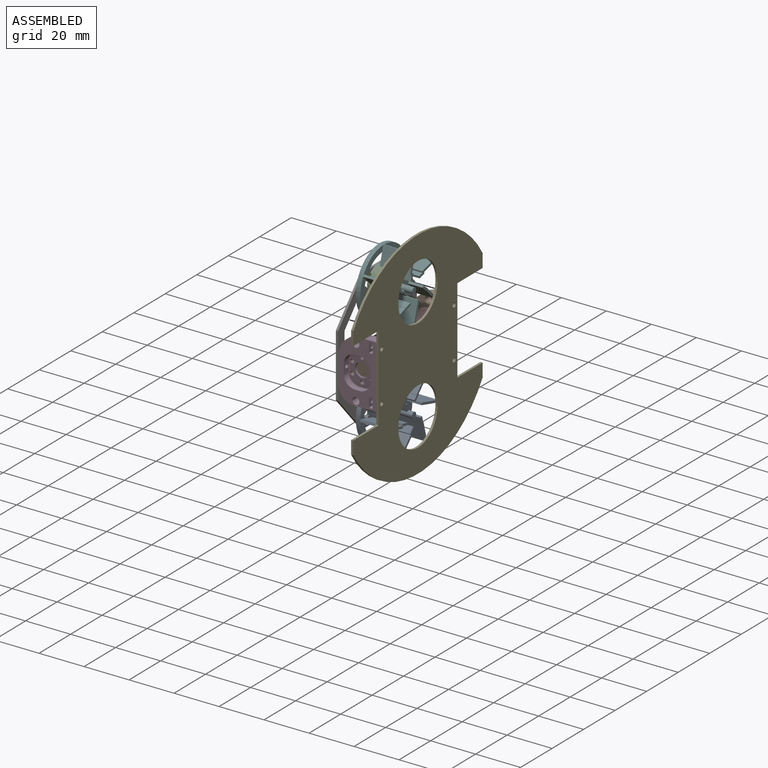
[diagram: assembled view]
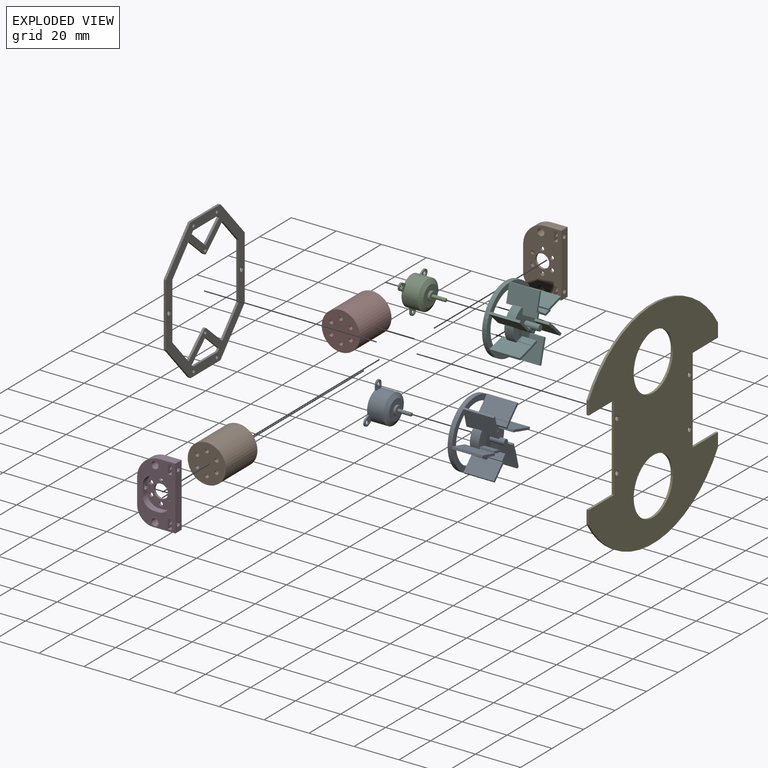
[diagram: exploded view]
GUIDED TOUR — MATED ASSEMBLY (Onshape document d8c64805f98a9f6dff895dfa, AutoMate assembly d8c64805f98a9f6dff895dfa_752a2c7e5c86d615102a377a_ef222d4d5db80c55affcdec6_default)

This assembly has 10 components, labeled P0..P9 below (a component is one placed occurrence of a part; the same part can appear more than once), held together by 9 mates. A mate is a constraint between two components; its type names the relative motion it leaves free:
  FASTENED — locks the two components together rigidly (no relative motion).
Axis/direction vectors are unit vectors and 'through' points are millimeter coordinates, both in the assembly's world frame.

MATES
  1. FASTENED "Fastened 5": P2 <-> P5, direction (1.000, 0.000, 0.000) through (3.87, 2.54, 43.25) mm
  2. FASTENED "Fastened 4": P7 <-> P1, direction (0.000, 1.000, 0.000) through (1.45, 23.54, 20.25) mm
  3. FASTENED "Fastened 2": P3 <-> P4, direction (1.000, 0.000, 0.000) through (5.62, -20.46, 7.24) mm
  4. FASTENED "Fastened 7": P0 <-> P6, direction (1.000, 0.000, 0.000) through (-11.38, 2.54, 1.75) mm
  5. FASTENED "Fastened 9": P6 <-> P1, direction (1.000, 0.000, 0.000) through (-11.38, 25.54, 18.25) mm
  6. FASTENED "Fastened 6": P0 <-> P8, direction (1.000, 0.000, 0.000) through (3.87, 2.54, -6.75) mm
  7. FASTENED "Fastened 3": P9 <-> P3, direction (0.000, -1.000, 0.000) through (1.45, -18.46, 15.25) mm
  8. FASTENED "Fastened 1": P1 <-> P4, direction (1.000, 0.000, 0.000) through (5.62, 25.54, 7.24) mm
  9. FASTENED "Fastened 8": P2 <-> P6, direction (1.000, 0.000, 0.000) through (-11.38, 2.54, 34.75) mm

ASSEMBLY ORDER
  1. P0 — the base component [order heuristic]
  2. P2 — core [order heuristic]
  3. P5 — core [order heuristic]
  4. P8 — core [order heuristic]
  5. P9 [order verified]
  6. P3 [order verified]
  7. P7 [order verified]
  8. P1 [order verified]
  9. P6 [order verified]
  10. P4 [order verified]
Order-tag legend:
  [order verified] — this step's position reverses a verified removal order: the component was checked to insert without passing through the ones already placed.
  [order heuristic] — the first 4 components form the assembly's core: parts whose collision-free extraction could not be verified, listed in mate-graph order.

Of the 10 components, 3 carry the full construction recipe — the FeatureScript program that regenerates the part's solid from scratch; the rest are supplied as boundary geometry only.
Each toured component is shown spotlighted twice — in the assembled view, then in the exploded view, where a leader line traces a displaced component back to its assembled socket (saturated green if recipe-attached, orange if geometry-only; every other component desaturated gray) — followed by its recipe or geometry summary and the mates that hold it.
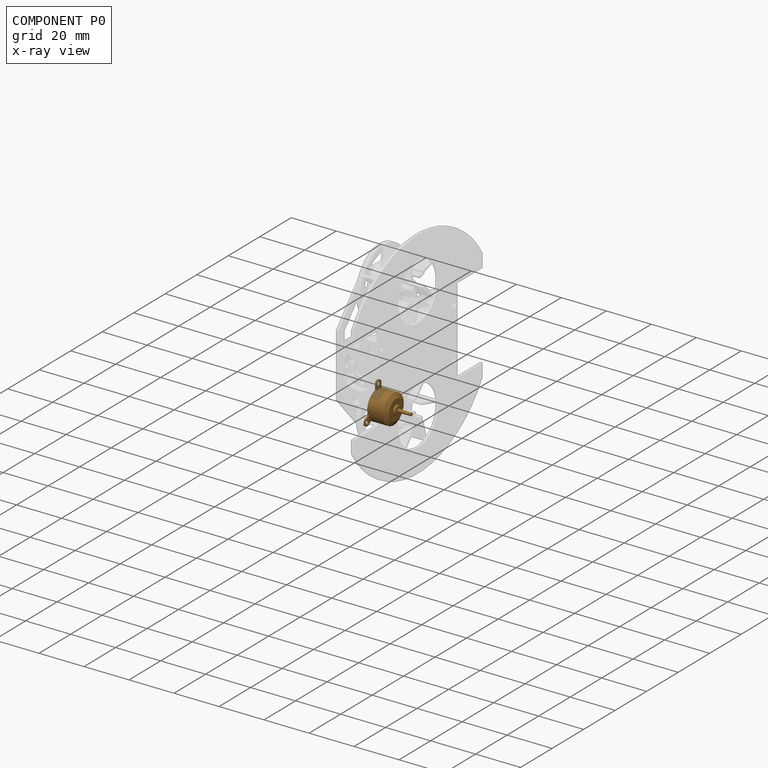
[diagram: component P0 — x-ray view]
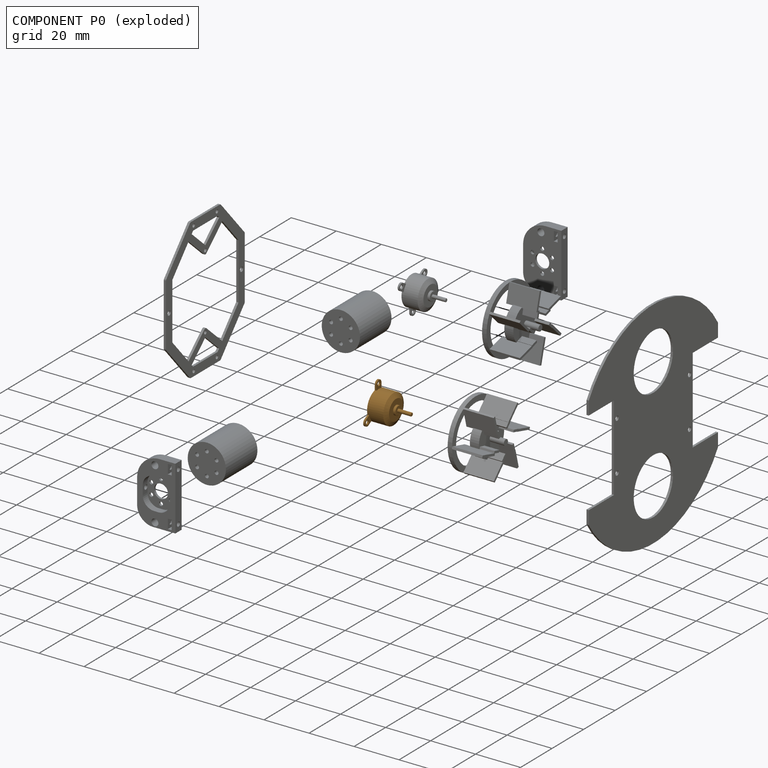
[diagram: component P0 — exploded]
COMPONENT P0 — geometry summary (no construction recipe available for this part):
  bounding box: 18.0 x 16.6 x 15.4 mm
  B-rep topology: 1 solid, 31 faces, 184 edges
  volume: 1108 mm^3 (24% of its bounding box)
  symmetry: mirror-symmetric across its z mid-plane
Held by: FASTENED mate "Fastened 7" to P6; FASTENED mate "Fastened 6" to P8.
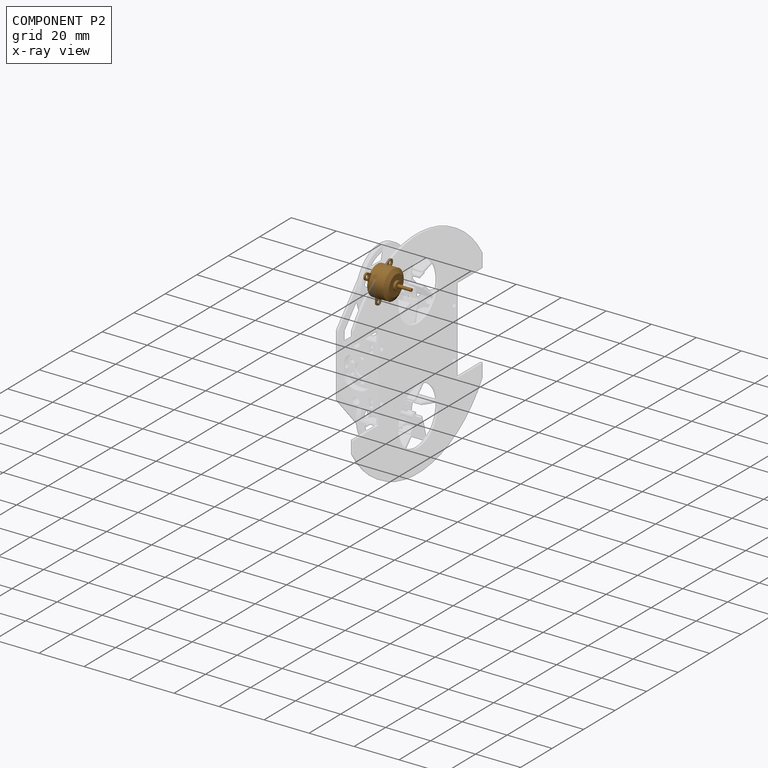
[diagram: component P2 — x-ray view]
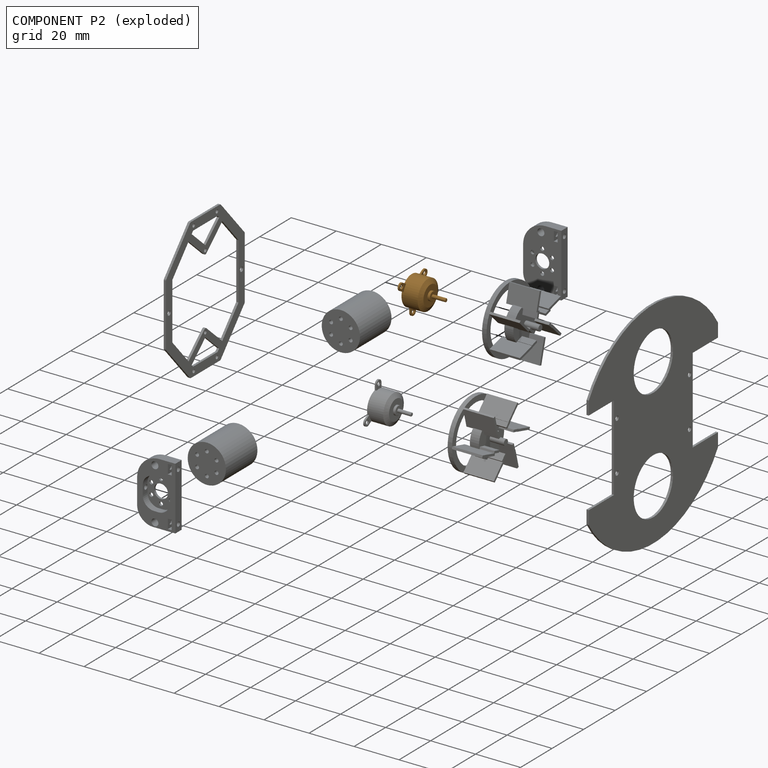
[diagram: component P2 — exploded]
COMPONENT P2 — geometry summary (no construction recipe available for this part):
  bounding box: 18.0 x 16.6 x 15.4 mm
  B-rep topology: 1 solid, 31 faces, 184 edges
  volume: 1108 mm^3 (24% of its bounding box)
  symmetry: mirror-symmetric across its z mid-plane
Held by: FASTENED mate "Fastened 5" to P5; FASTENED mate "Fastened 8" to P6.
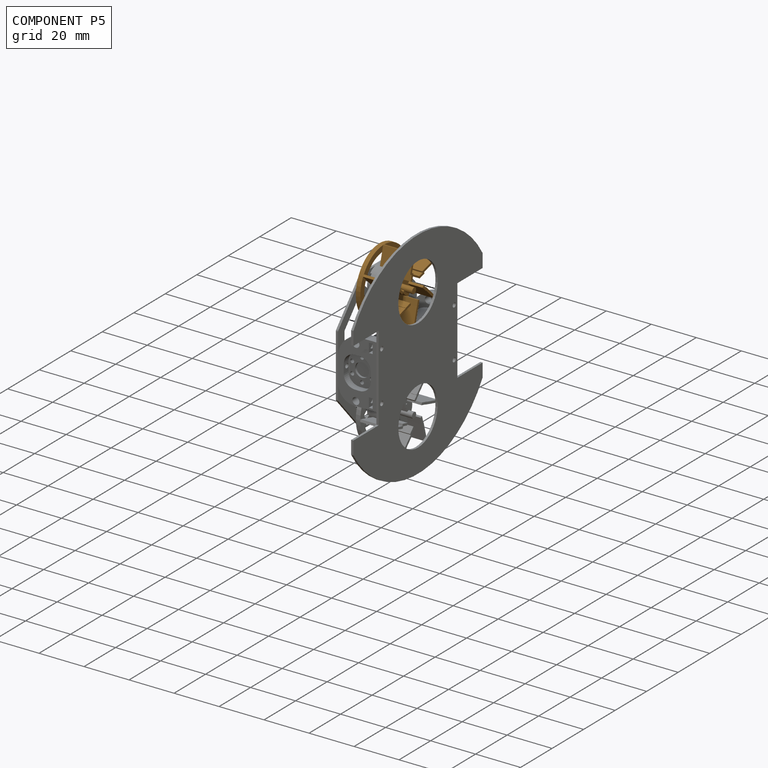
[diagram: component P5 — assembled]
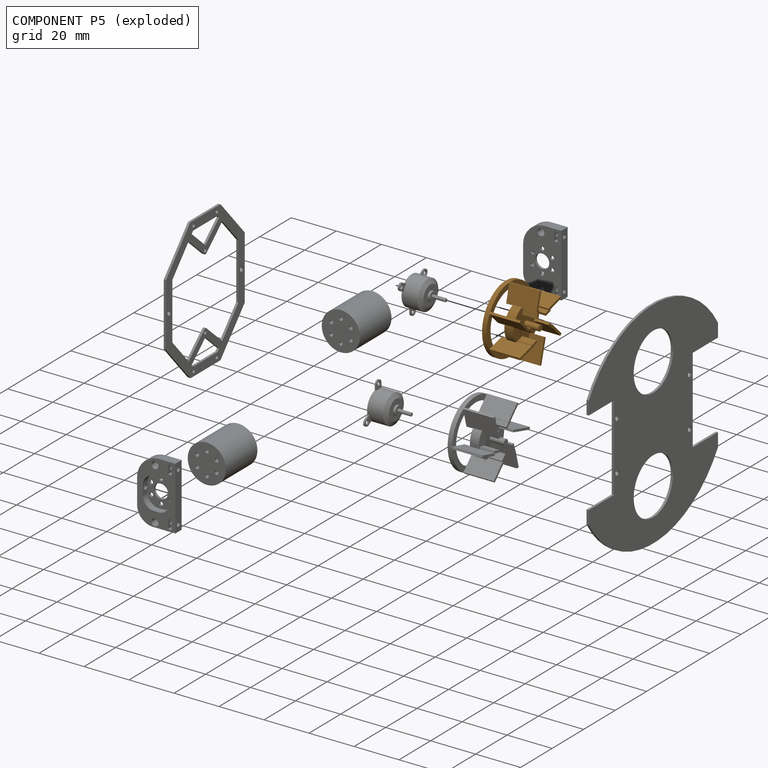
[diagram: component P5 — exploded]
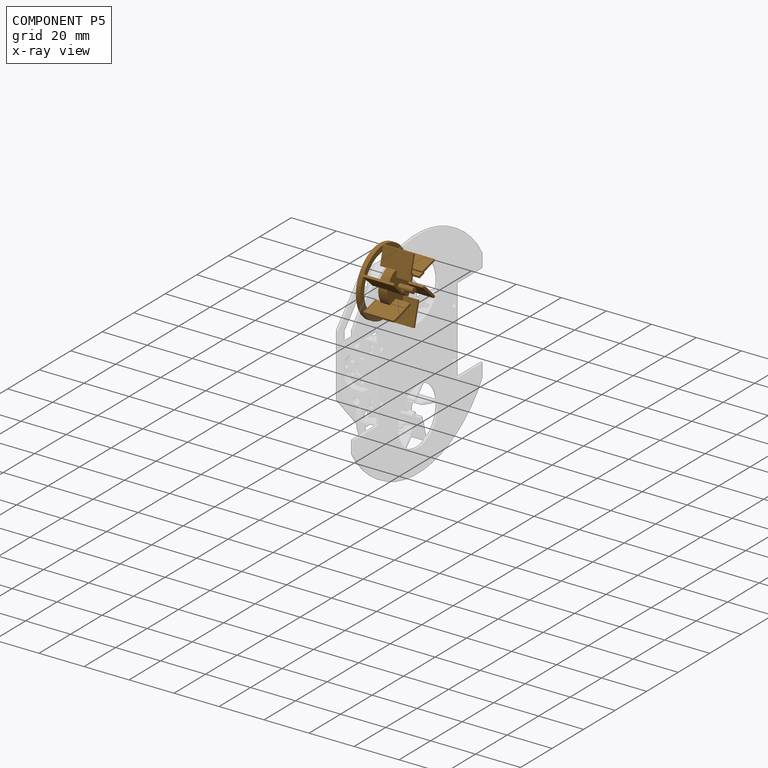
[diagram: component P5 — x-ray view]
COMPONENT P5 — geometry summary (no construction recipe available for this part):
  bounding box: 30.3 x 30.0 x 15.5 mm
  B-rep topology: 1 solid, 100 faces, 574 edges
  volume: 1623 mm^3 (12% of its bounding box)
Held by: FASTENED mate "Fastened 5" to P2.
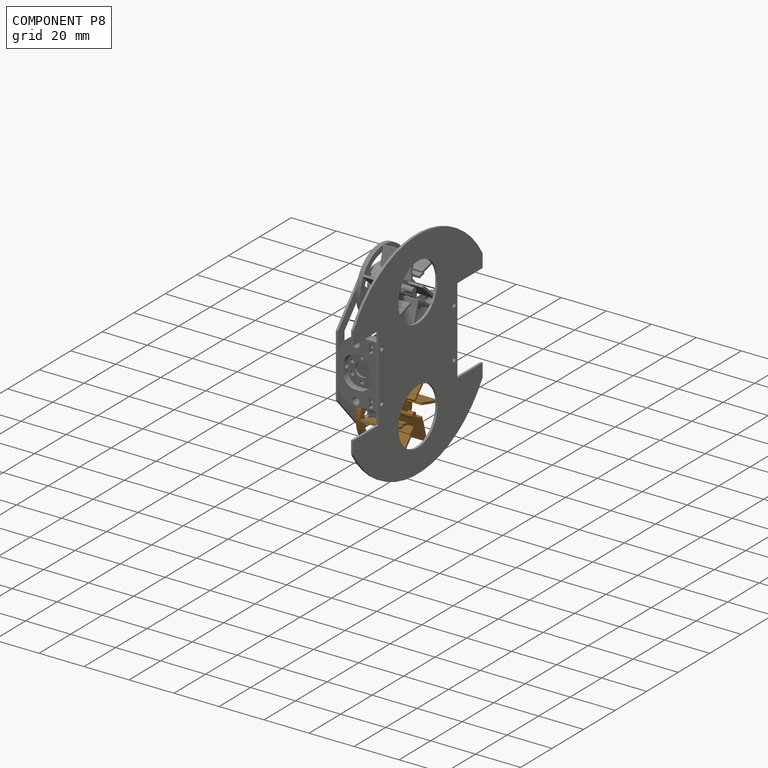
[diagram: component P8 — assembled]
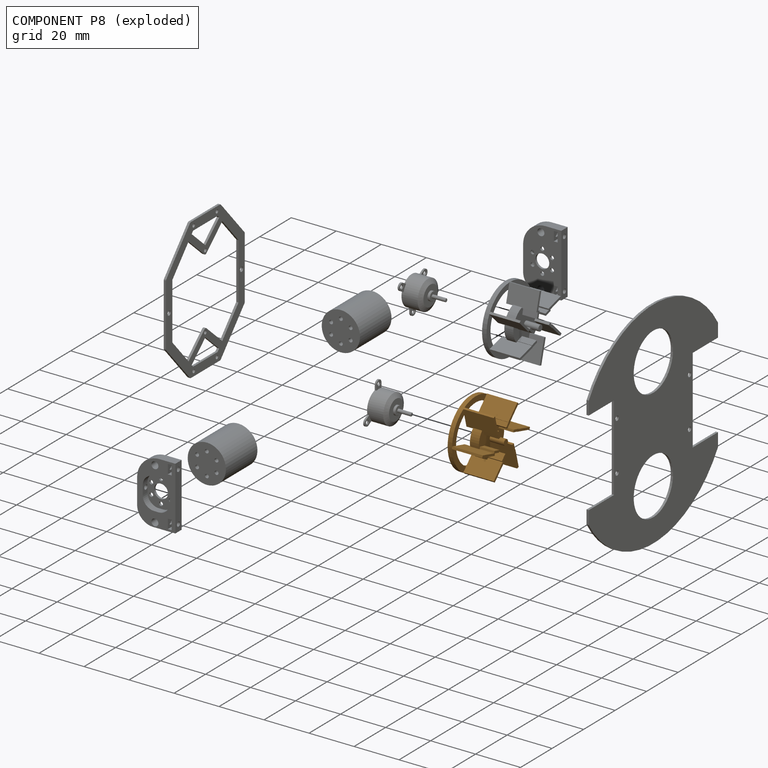
[diagram: component P8 — exploded]
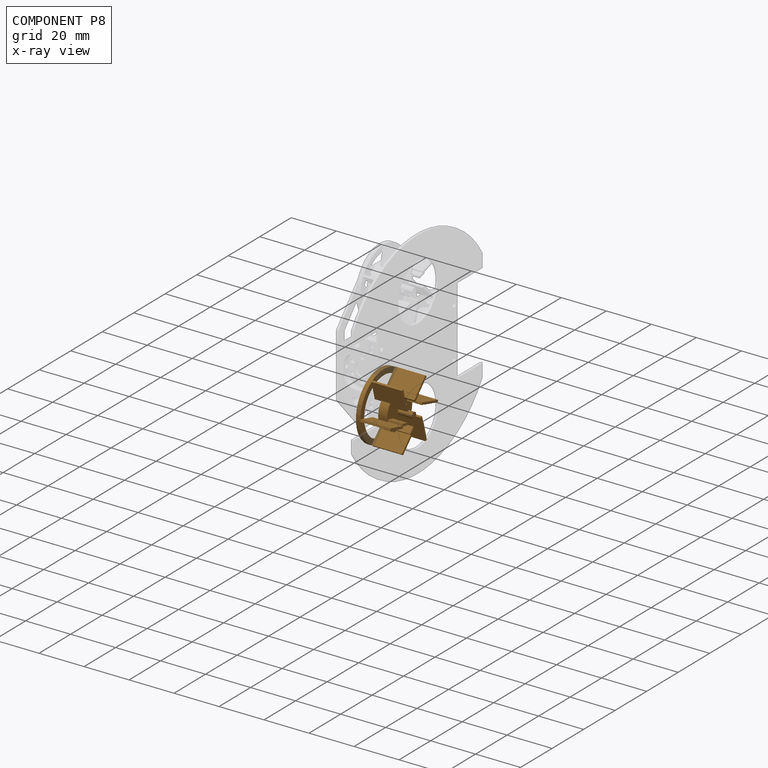
[diagram: component P8 — x-ray view]
COMPONENT P8 — geometry summary (no construction recipe available for this part):
  bounding box: 30.3 x 30.0 x 15.5 mm
  B-rep topology: 1 solid, 100 faces, 574 edges
  volume: 1623 mm^3 (12% of its bounding box)
Held by: FASTENED mate "Fastened 6" to P0.
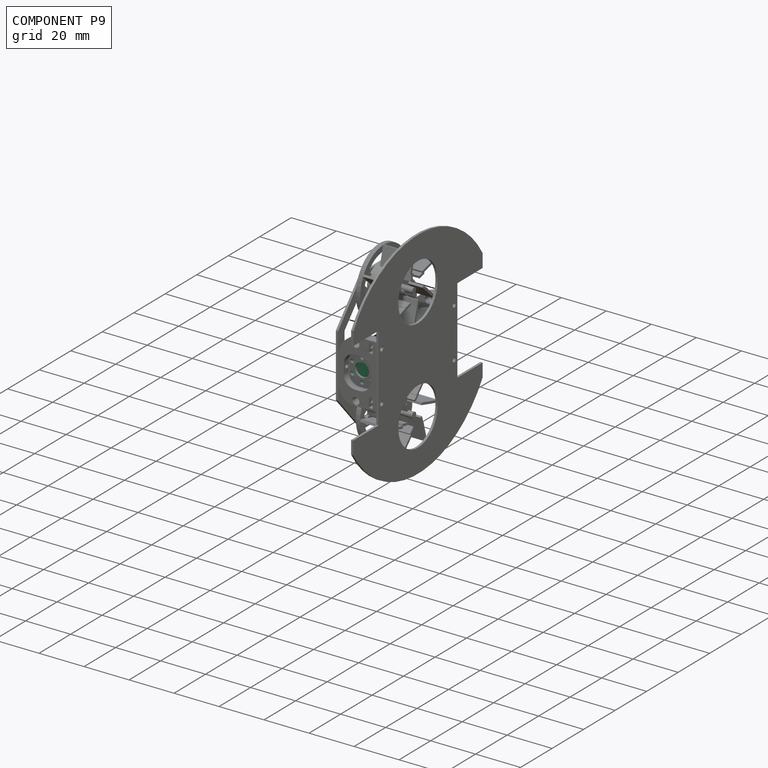
[diagram: component P9 — assembled]
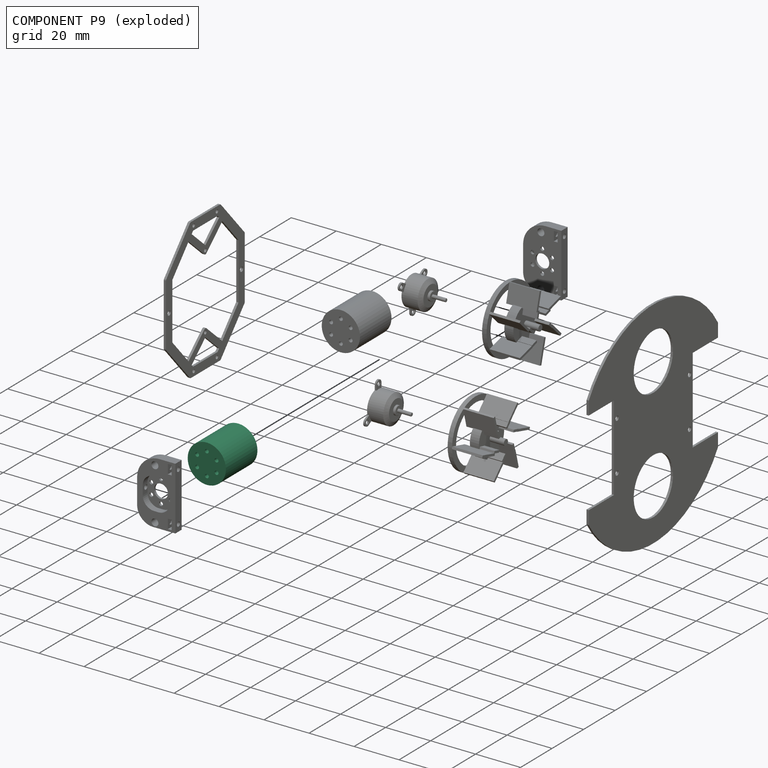
[diagram: component P9 — exploded]
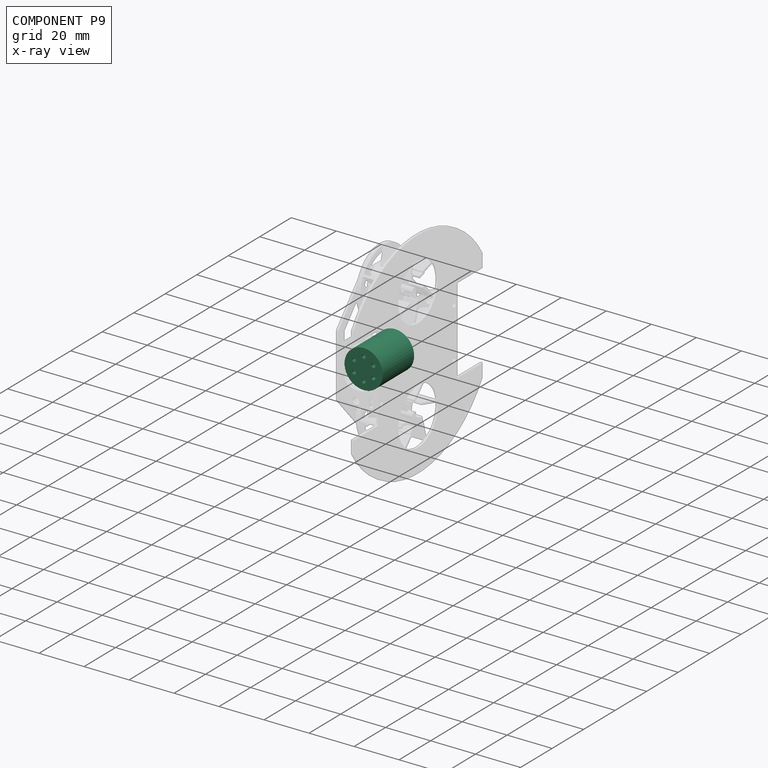
[diagram: component P9 — x-ray view]
COMPONENT P9 — same part as P7 (CADFS 00224283); its construction recipe is shown at P7.
Held by: FASTENED mate "Fastened 3" to P3.
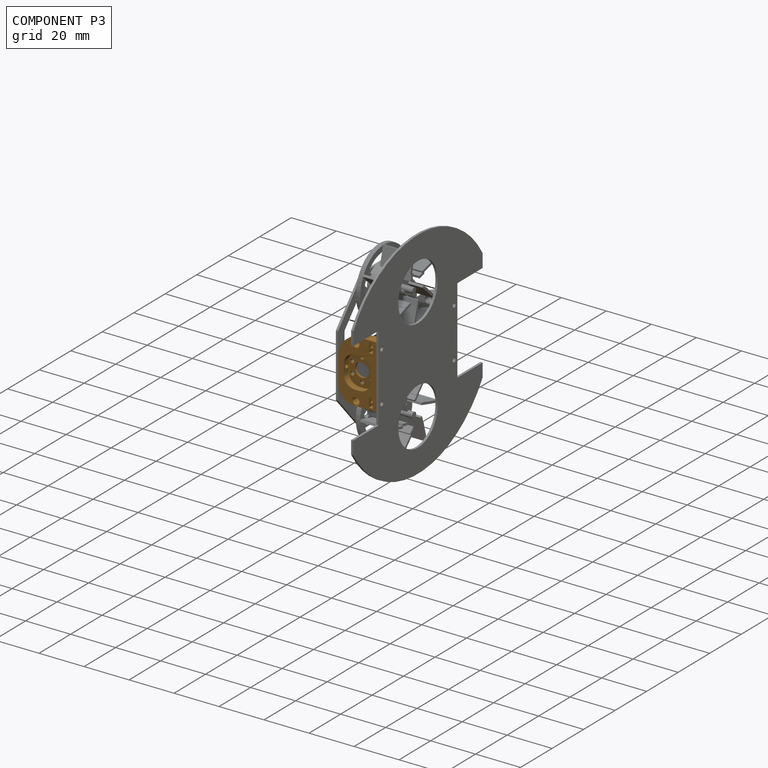
[diagram: component P3 — assembled]
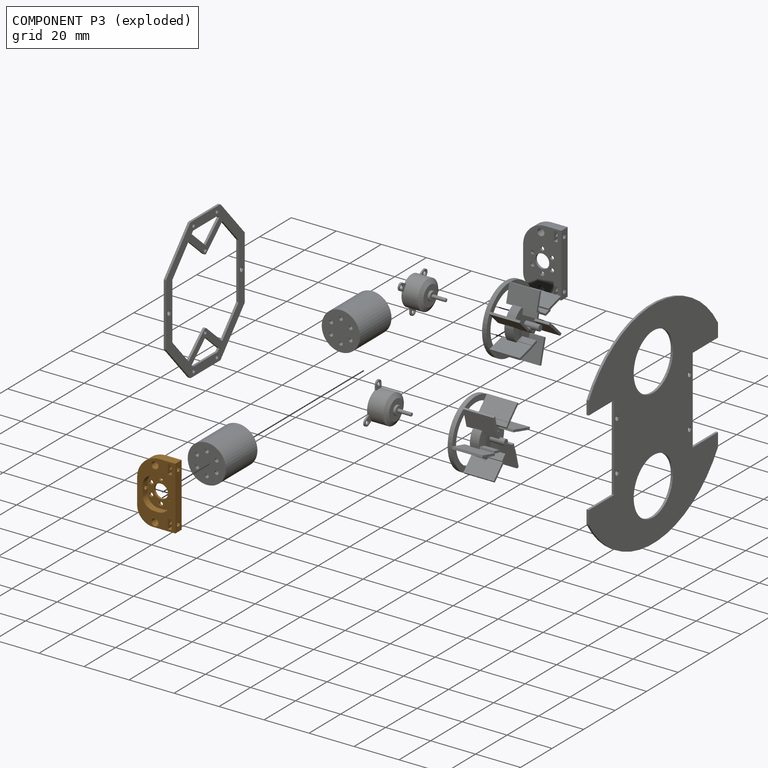
[diagram: component P3 — exploded]
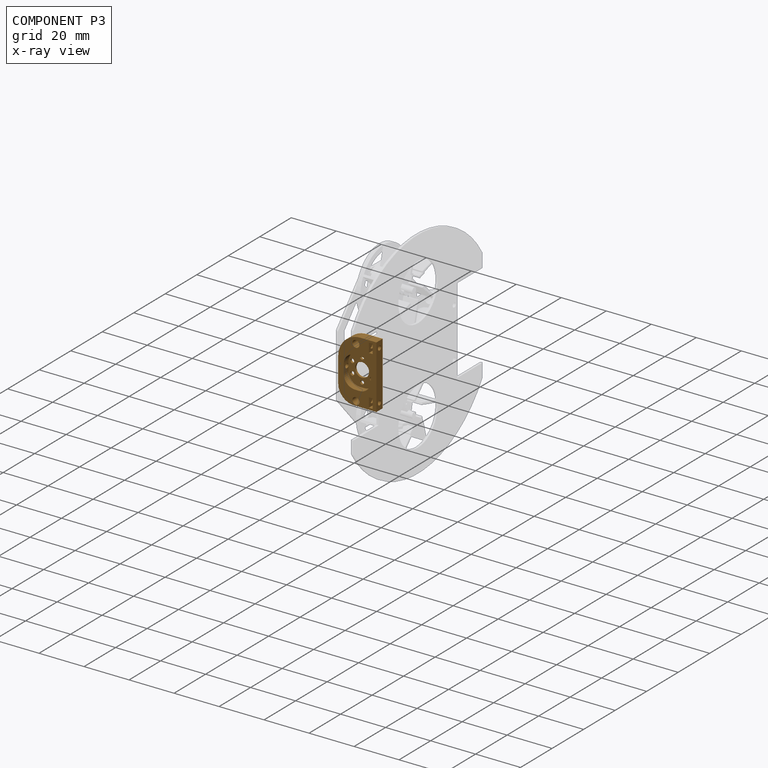
[diagram: component P3 — x-ray view]
COMPONENT P3 — geometry summary (no construction recipe available for this part):
  bounding box: 28.0 x 17.0 x 4.0 mm
  B-rep topology: 1 solid, 41 faces, 228 edges
  volume: 1153 mm^3 (61% of its bounding box)
Held by: FASTENED mate "Fastened 2" to P4; FASTENED mate "Fastened 3" to P9.
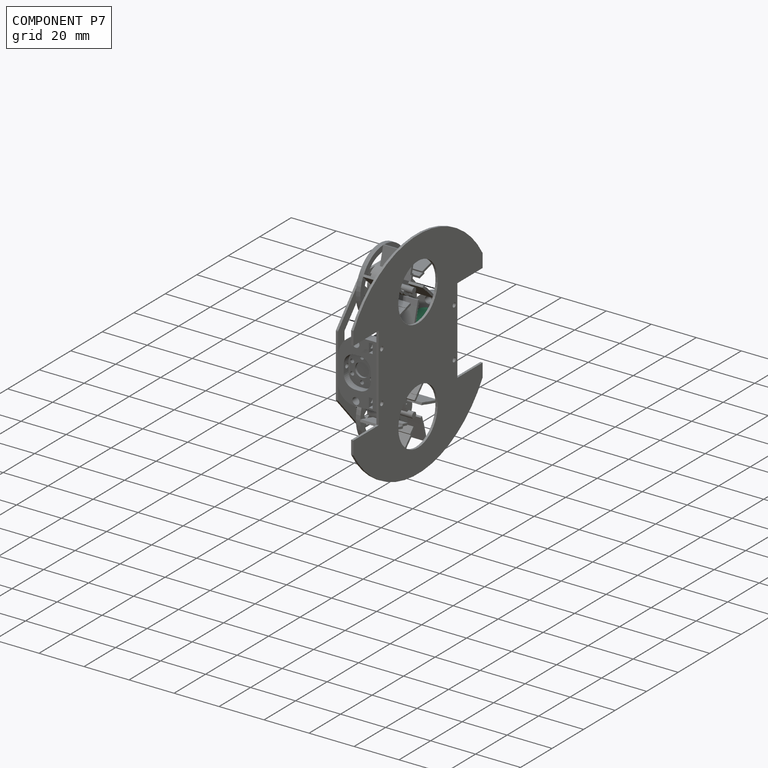
[diagram: component P7 — assembled]
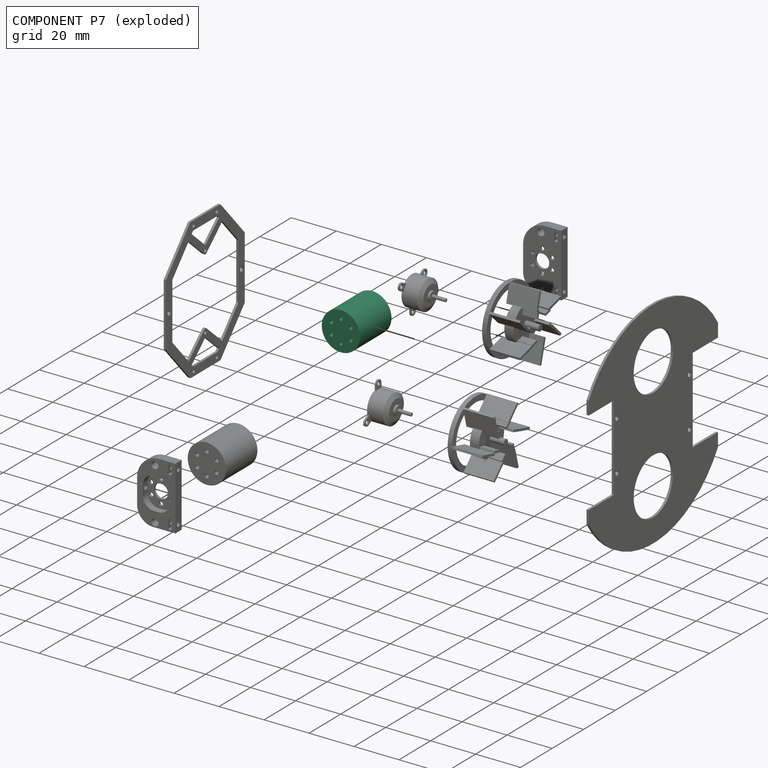
[diagram: component P7 — exploded]
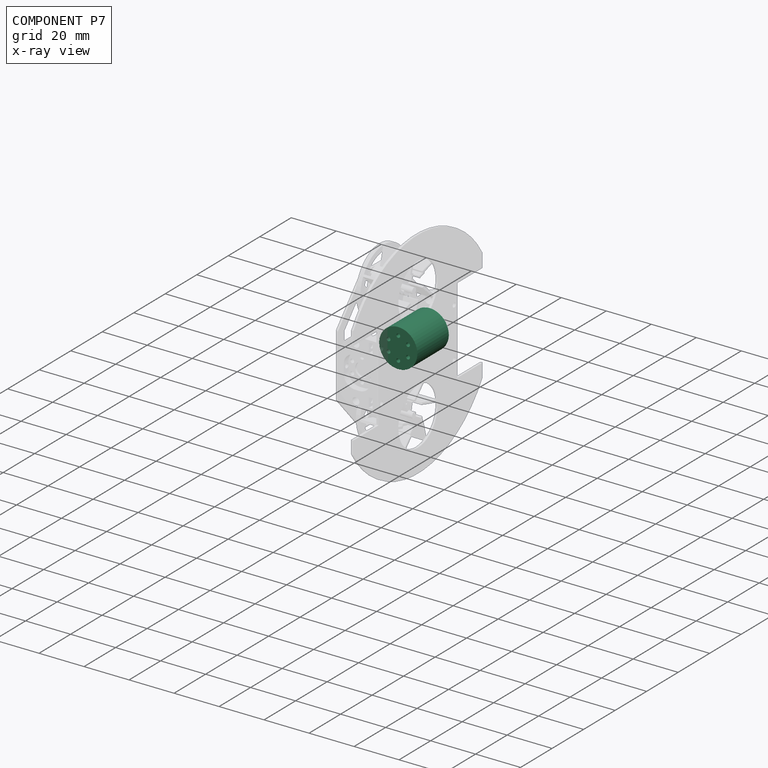
[diagram: component P7 — x-ray view]
COMPONENT P7 — recipe-attached (CADFS 00224283, mesh-verified: the recipe's output STEP matches this component's geometry to below the mesh-comparison resolution (tessellation chordal tolerance ~0.0469 mm)).
Held by: FASTENED mate "Fastened 4" to P1.
Construction recipe (FeatureScript — the CAD program that rebuilds this solid; sketch coordinates are in the units given by the * unit suffixes, e.g. mm):

FeatureScript 1511;
import(path : "onshape/std/geometry.fs", version : "1511.0");
import(path : "onshape/std/common.fs", version : "1511.0");
const mm = millimeter;
const VERTEX = EntityType.VERTEX;
const EDGE = EntityType.EDGE;
const FACE = EntityType.FACE;
const BODY = EntityType.BODY;
function v(x, y){return vector(x, y);}
function OD(order){return orderDisambiguation(order);}
function OSD(set){return originalSetDisambiguation(set);}
function TD(topology){return topologyDisambiguation(topology);}
function TDD(query){return trueDependencyDisambiguation(query);}
function sQuery(a, b, c) {return sketchEntityQuery(a, b, c);}

annotation { "Feature Type Name" : "Feature", "Feature Type Description" : "" }
export const myFeature = defineFeature(function(context is Context, id is Id, definition is map)
    precondition{}
    {
        {
            var Q0;
            Q0=qCreatedBy(makeId("Front.planeOp"),FACE);
            var sketch = newSketch(context, id + "F0", { "sketchPlane" : qUnion([Q0])});
            skCircle(sketch, "E0", {"center": v(0, 0) * mm, "radius": 8.5 * mm});
            skPoint(sketch, "E1", {"position": v(0, 5) * mm});
            skCircle(sketch, "E2", {"center": v(0, 5) * mm, "radius": 0.85 * mm});
            skCircle(sketch, "E3.1.0", {"center": v(-4.33, 2.5) * mm, "radius": 0.85 * mm});
            skCircle(sketch, "E3.2.0", {"center": v(-4.33, -2.5) * mm, "radius": 0.85 * mm});
            skCircle(sketch, "E3.3.0", {"center": v(0, -5) * mm, "radius": 0.85 * mm});
            skCircle(sketch, "E3.4.0", {"center": v(4.33, -2.5) * mm, "radius": 0.85 * mm});
            skCircle(sketch, "E3.5.0", {"center": v(4.33, 2.5) * mm, "radius": 0.85 * mm});
            skSolve(sketch);
        }
        {
            var Q0;
            Q0 = qSketchRegion(id + "F0", true);
            extrude(context, id + "F1", {"entities" : qUnion([Q0]), "depth" : 20 * mm, "offsetDistance" : 25 * mm});
        }
    });
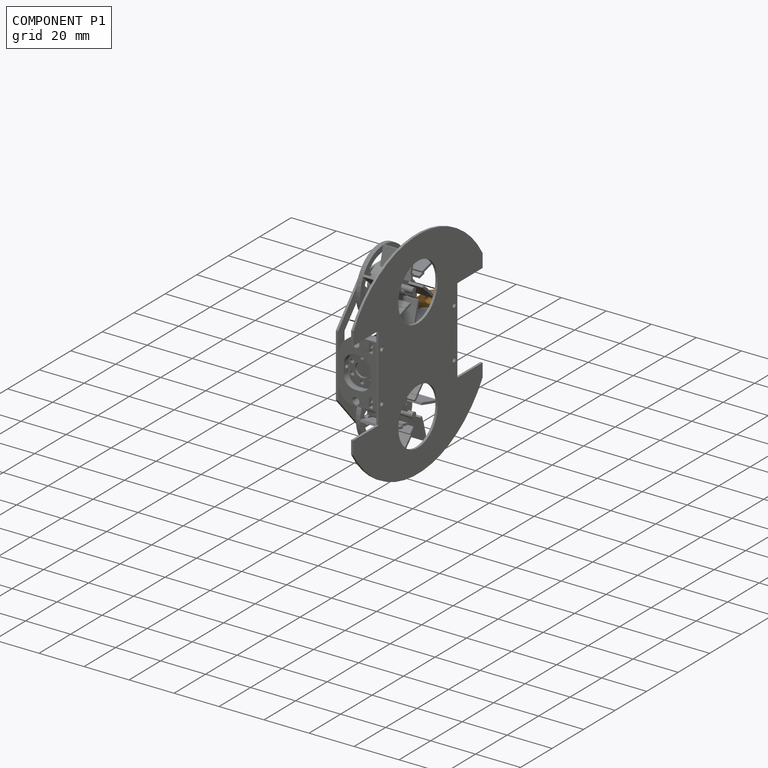
[diagram: component P1 — assembled]
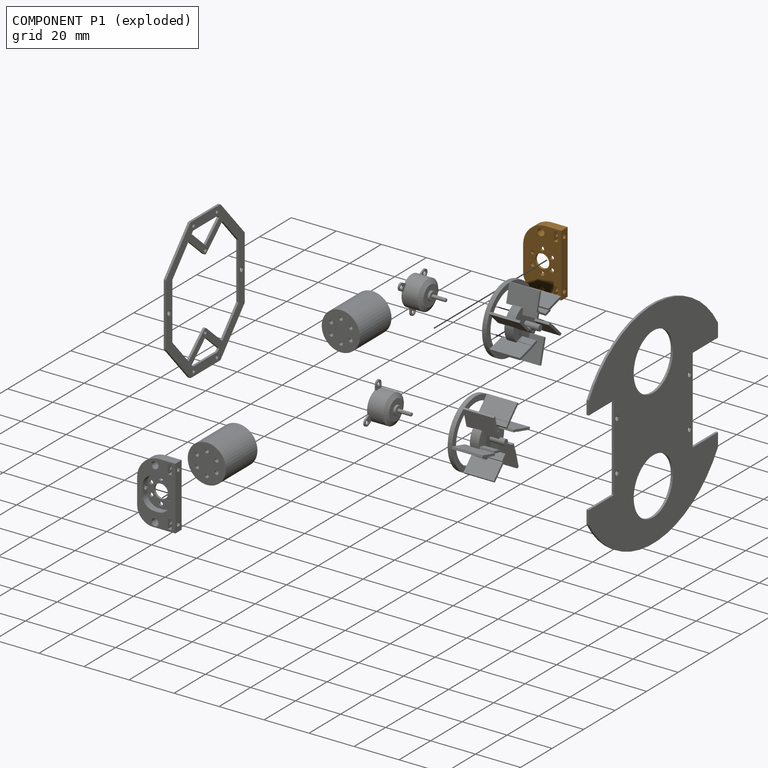
[diagram: component P1 — exploded]
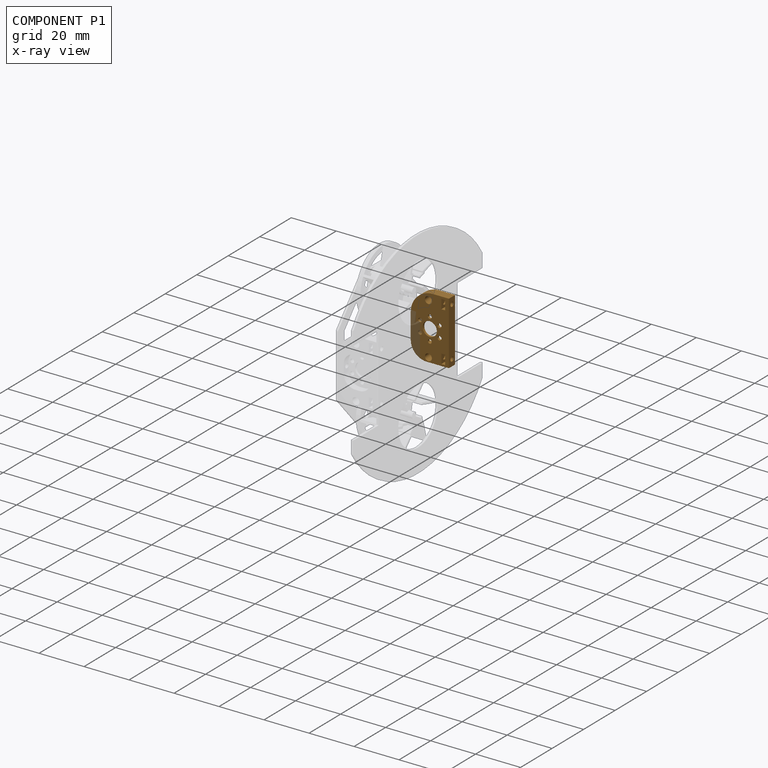
[diagram: component P1 — x-ray view]
COMPONENT P1 — geometry summary (no construction recipe available for this part):
  bounding box: 28.0 x 17.0 x 4.0 mm
  B-rep topology: 1 solid, 41 faces, 228 edges
  volume: 1153 mm^3 (61% of its bounding box)
Held by: FASTENED mate "Fastened 4" to P7; FASTENED mate "Fastened 9" to P6; FASTENED mate "Fastened 1" to P4.
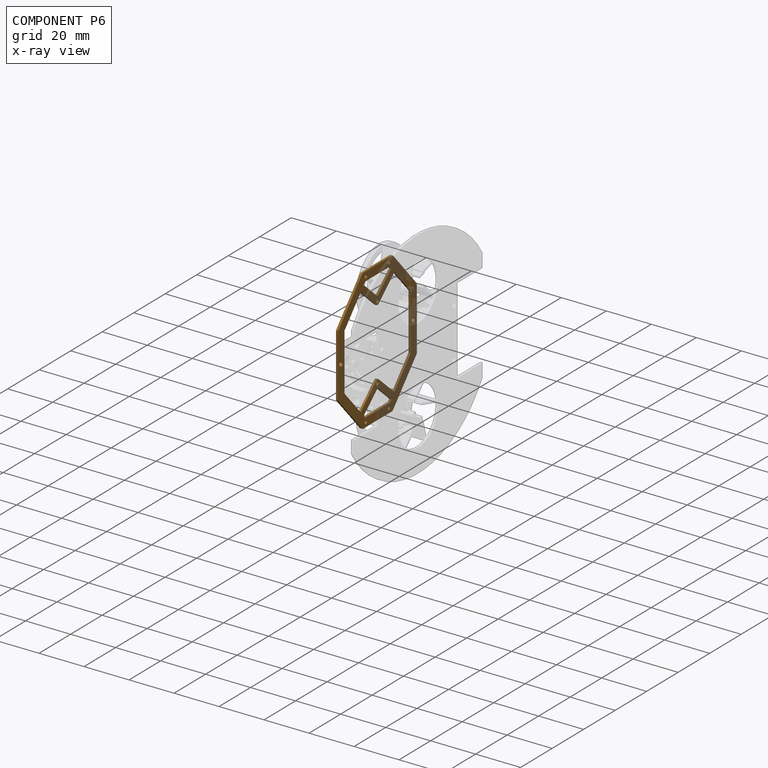
[diagram: component P6 — x-ray view]
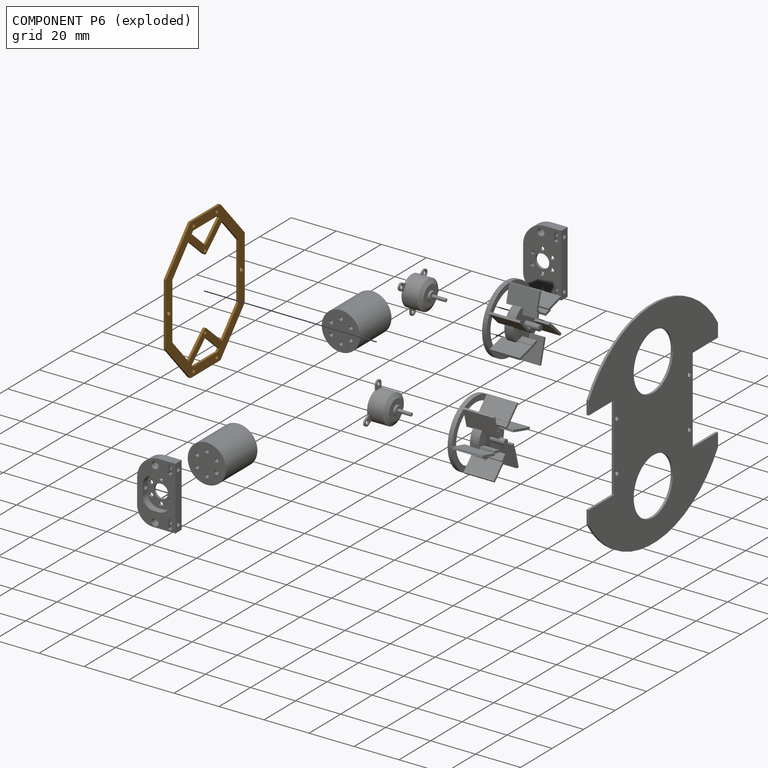
[diagram: component P6 — exploded]
COMPONENT P6 — geometry summary (no construction recipe available for this part):
  bounding box: 62.7 x 50.0 x 1.0 mm
  B-rep topology: 1 solid, 48 faces, 276 edges
  volume: 832 mm^3 (27% of its bounding box)
  symmetry: 2-fold rotationally symmetric about the x axis; 2-fold rotationally symmetric about the y axis; 2-fold rotationally symmetric about the z axis; mirror-symmetric across its x mid-plane, y mid-plane, z mid-plane
Held by: FASTENED mate "Fastened 7" to P0; FASTENED mate "Fastened 9" to P1; FASTENED mate "Fastened 8" to P2.
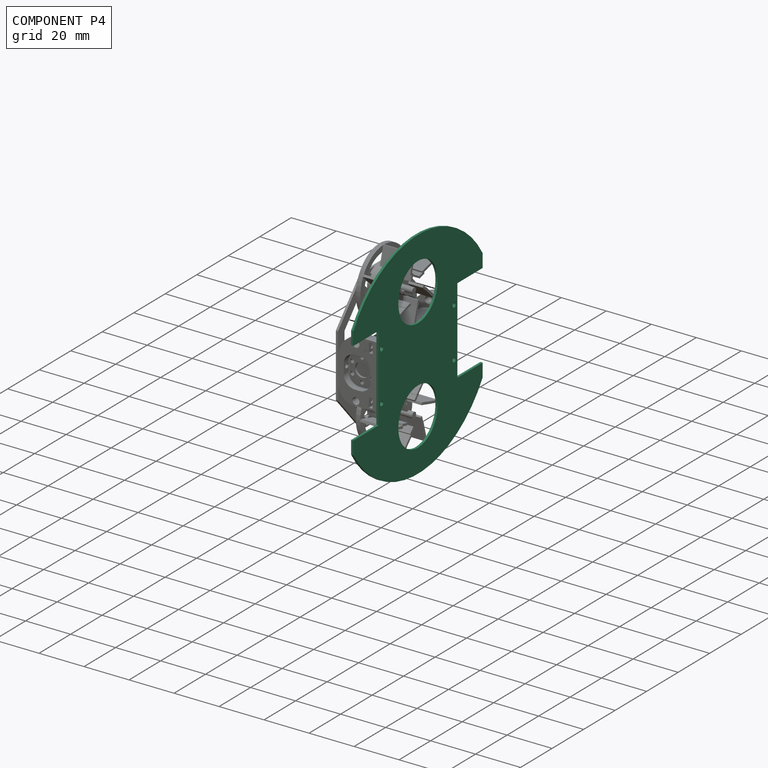
[diagram: component P4 — assembled]
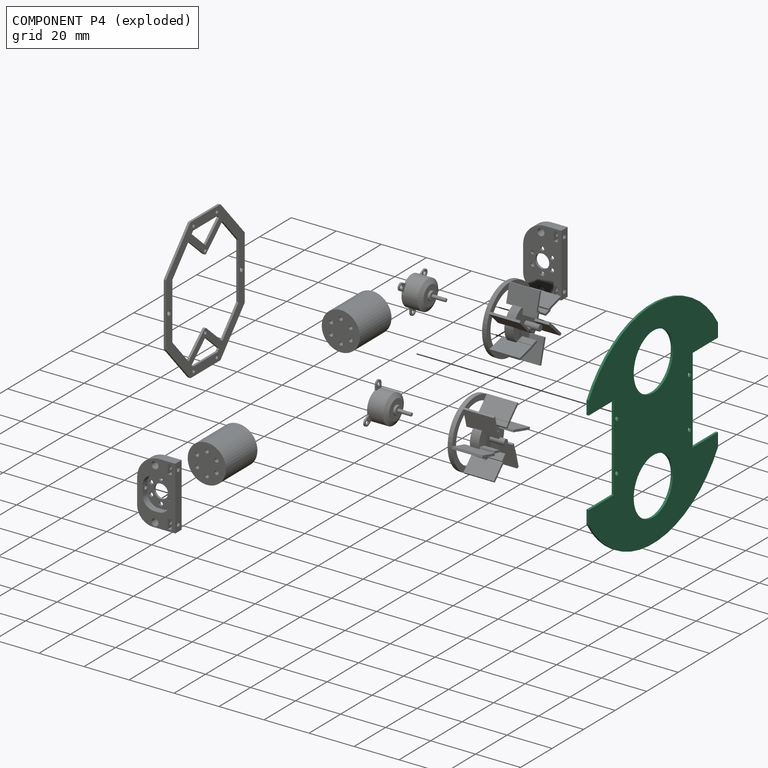
[diagram: component P4 — exploded]
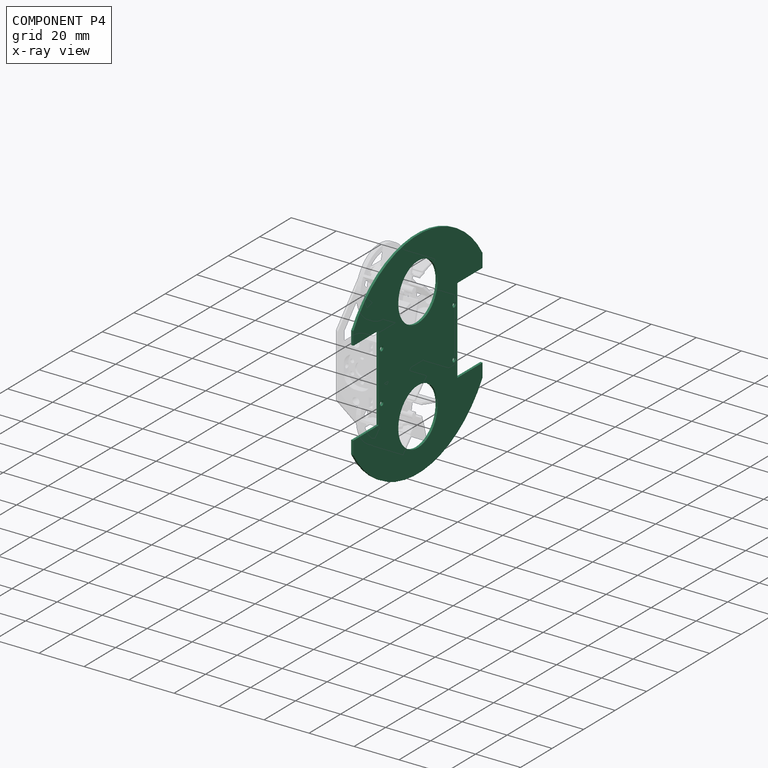
[diagram: component P4 — x-ray view]
COMPONENT P4 — recipe-attached (CADFS 00342170, mesh-verified: the recipe's output STEP matches this component's geometry to below the mesh-comparison resolution (tessellation chordal tolerance ~0.189 mm)).
Held by: FASTENED mate "Fastened 2" to P3; FASTENED mate "Fastened 1" to P1.
Construction recipe (FeatureScript — the CAD program that rebuilds this solid; sketch coordinates are in the units given by the * unit suffixes, e.g. mm):

FeatureScript 1511;
import(path : "onshape/std/geometry.fs", version : "1511.0");
import(path : "onshape/std/common.fs", version : "1511.0");
const mm = millimeter;
const VERTEX = EntityType.VERTEX;
const EDGE = EntityType.EDGE;
const FACE = EntityType.FACE;
const BODY = EntityType.BODY;
function v(x, y){return vector(x, y);}
function OD(order){return orderDisambiguation(order);}
function OSD(set){return originalSetDisambiguation(set);}
function TD(topology){return topologyDisambiguation(topology);}
function TDD(query){return trueDependencyDisambiguation(query);}
function sQuery(a, b, c) {return sketchEntityQuery(a, b, c);}

annotation { "Feature Type Name" : "Feature", "Feature Type Description" : "" }
export const myFeature = defineFeature(function(context is Context, id is Id, definition is map)
    precondition{}
    {
        {
            var Q0;
            Q0=qCreatedBy(makeId("Top.planeOp"),FACE);
            var sketch = newSketch(context, id + "F0", { "sketchPlane" : qUnion([Q0])});
            skPoint(sketch, "E0", {"position": v(11, 23) * mm});
            skLineSegment(sketch, "E1", {"start": v(0, 25) * mm, "end": v(19, 25) * mm});
            skPoint(sketch, "E2.MirrorP", {"position": v(-11, 23) * mm});
            skPoint(sketch, "E3.MirrorP", {"position": v(11, -23) * mm});
            skPoint(sketch, "E4.MirrorP", {"position": v(-11, -23) * mm});
            skLineSegment(sketch, "E5.MirrorCS", {"start": v(0, -25) * mm, "end": v(19, -25) * mm});
            skLineSegment(sketch, "E6.MirrorCS", {"start": v(0, 25) * mm, "end": v(-19, 25) * mm});
            skLineSegment(sketch, "E7.MirrorCS", {"start": v(0, -25) * mm, "end": v(-19, -25) * mm});
            skLineSegment(sketch, "E8", {"start": v(19, 25) * mm, "end": v(19, 41) * mm});
            skLineSegment(sketch, "E9", {"start": v(19, 41) * mm, "end": v(25, 41) * mm});
            skLineSegment(sketch, "E10.MirrorCS", {"start": v(19, -41) * mm, "end": v(25, -41) * mm});
            skLineSegment(sketch, "E11.MirrorCS", {"start": v(19, -25) * mm, "end": v(19, -41) * mm});
            skPoint(sketch, "E12", {"position": v(25, 0) * mm});
            skArc(sketch, "E13", {"start": v(25, 41) * mm, "mid": v(48.02, 0) * mm, "end": v(25, -41) * mm});
            skCircle(sketch, "E14", {"center": v(25, 0) * mm, "radius": 12.5 * mm});
            skLineSegment(sketch, "E15.MirrorCS", {"start": v(-19, 25) * mm, "end": v(-19, 41) * mm});
            skLineSegment(sketch, "E16.MirrorCS", {"start": v(-19, -25) * mm, "end": v(-19, -41) * mm});
            skLineSegment(sketch, "E17.MirrorCS", {"start": v(-19, -41) * mm, "end": v(-25, -41) * mm});
            skCircle(sketch, "E18.MirrorC", {"center": v(-25, 0) * mm, "radius": 12.5 * mm});
            skLineSegment(sketch, "E19.MirrorCS", {"start": v(-19, 41) * mm, "end": v(-25, 41) * mm});
            skArc(sketch, "E20.MirrorCS", {"start": v(-25, 41) * mm, "mid": v(-48.02, 0) * mm, "end": v(-25, -41) * mm});
            skCircle(sketch, "E21", {"center": v(-11, 23) * mm, "radius": 1 * mm});
            skCircle(sketch, "E22.MirrorC", {"center": v(11, 23) * mm, "radius": 1 * mm});
            skCircle(sketch, "E23.MirrorC", {"center": v(-11, -23) * mm, "radius": 1 * mm});
            skCircle(sketch, "E24.MirrorC", {"center": v(11, -23) * mm, "radius": 1 * mm});
            skSolve(sketch);
        }
        {
            var Q0;
            Q0=makeQuery(id+"F0.imprint","IMPRINT",FACE,{"disambiguationData":[TD([[makeQuery(id+"F0.imprint","IMPRINT",EDGE,{"derivedFrom":sQuery(id+"F0.wireOp",EDGE,"E1")}),-1.0]])]});
            extrude(context, id + "F1", {"entities" : qUnion([Q0]), "depth" : 1 * mm});
        }
    });
PROVENANCE & LICENSES
Assembly (occurrences, transforms, mates, per-part STEP geometry): AutoMate dataset, Zenodo record 7776208, CC0.
Construction recipes: CADFS (HuggingFace VladPyatov/CADFS, CC-BY-4.0, layered over the ABC dataset), FeatureScript reconstruction programs keyed by ABC model id.
Join: ABC meta listings map ABC model id -> Onshape documentId; within a shared document, parts are matched by geometric signature (bounding-box dims + volume at 0.1% relative tolerance, exact B-rep face/solid counts).
Verification: 3 of this assembly's 10 components carry a recipe attachment, and every attachment is mesh-verified: the CADFS STEP and the AutoMate member STEP were compared as meshes in their shared local frame (symmetric sampled-point-to-mesh distance); worst across the 3 attachments: below the mesh-comparison resolution (tessellation chordal tolerance ~0.189 mm) on a 126 mm part.
Renders: orthographic iso camera (az 35 / el 25); the floor grid conveys scale (grid pitch printed in each image; no ruler). In the exploded view each component is displaced by its stored offset vector: the offsets alone carry the explosion direction (mate normal/axis signs are not orientation cues and do not encode it), and separation distances are assigned per mate-chain, not proportionally to assembly-order depth.
